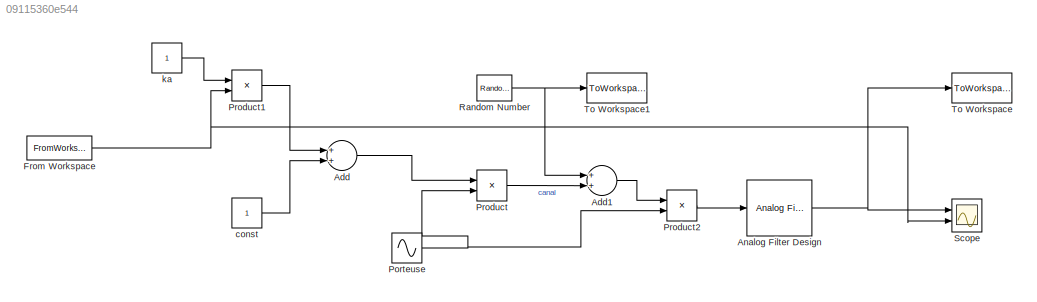
MODEL slx_09115360e544
KIND model
CONFIG AbsTol = auto
CONFIG FixedStep = 1/100000
CONFIG MaxStep = auto
CONFIG MinStep = auto
CONFIG RelTol = 1e-3
CONFIG SampleTimeConstraint = Unconstrained
CONFIG Solver = ode3
CONFIG SolverMode = Auto
CONFIG SolverName = ode3
CONFIG StartTime = 0.0
CONFIG StopTime = 5
BLOCK [Sum] Add
  InputSameDT = off
  OutDataTypeStr = Inherit: Inherit via internal rule
  Ports = [2, 1]
  SaturateOnIntegerOverflow = off
BLOCK [Sum] Add1
  InputSameDT = off
  OutDataTypeStr = Inherit: Inherit via internal rule
  Ports = [2, 1]
  SaturateOnIntegerOverflow = off
BLOCK [Reference] Analog Filter Design  REF=dsparch4/Analog
Filter Design
  Ports = [1, 1]
  SourceBlock = dsparch4/Analog\nFilter Design
  SourceType = Analog Filter Design
BLOCK [FromWorkspace] From Workspace
  SampleTime = 1/100000
  VariableName = signal
  ZeroCross = on
BLOCK [Sin] Porteuse
  Frequency = 60000*2*pi
  Phase = pi/2
  Ports = [0, 1]
  SampleTime = 1/100000
BLOCK [Product] Product
  InputSameDT = off
  OutDataTypeStr = Inherit: Inherit via internal rule
  Ports = [2, 1]
  RndMeth = Floor
  SaturateOnIntegerOverflow = off
BLOCK [Product] Product1
  InputSameDT = off
  OutDataTypeStr = Inherit: Inherit via internal rule
  Ports = [2, 1]
  RndMeth = Floor
  SaturateOnIntegerOverflow = off
BLOCK [Product] Product2
  InputSameDT = off
  OutDataTypeStr = Inherit: Inherit via internal rule
  Ports = [2, 1]
  RndMeth = Floor
  SaturateOnIntegerOverflow = off
BLOCK [RandomNumber] Random Number
  SampleTime = 1/100000
  Variance = 5
BLOCK [Scope] Scope
  NumInputPorts = 2
  Ports = [2]
  ScopeSpecificationString = Simulink.scopes.TimeScopeBlockCfg('CurrentConfiguration', extmgr.ConfigurationSet(extmgr.Configuration('Core','General UI',true),extmgr.Configuration('Core','Source UI',true),extmgr.Configuration('Sources','WiredSimulink',true),extmgr.Configuration('Visuals','Time Domain',true,'SerializedDisplays',{struct('MinYLimReal','-0.27155','MaxYLimReal','0.71503','YLabelReal','','MinYLimMag','0.00000','MaxY...<+2033ch>
BLOCK [ToWorkspace] To Workspace
  FixptAsFi = on
  MaxDataPoints = inf
  Ports = [1]
  SampleTime = 1/100000
  Save2DSignal = 2-D array (concatenate along first dimension)
  VariableName = simout
BLOCK [ToWorkspace] To Workspace1
  FixptAsFi = on
  MaxDataPoints = inf
  Ports = [1]
  SampleTime = 1/100000
  Save2DSignal = 2-D array (concatenate along first dimension)
  VariableName = noise
BLOCK [Constant] const
  SampleTime = -1
BLOCK [Constant] ka
  SampleTime = -1
LINE Add1:1 -> Product2:1
LINE Add:1 -> Product:1
NET Analog Filter Design:1 -> Scope:1, To Workspace:1
NET From Workspace:1 -> Product1:2, Scope:2
NET Porteuse:1 -> Product2:2, Product:2
LINE Product1:1 -> Add:1
LINE Product2:1 -> Analog Filter Design:1
LINE Product:1 -> Add1:2
NET Random Number:1 -> Add1:1, To Workspace1:1
LINE const:1 -> Add:2
LINE ka:1 -> Product1:1
note: NET lines group one-source signal fan-out (src -> all destinations, sorted); 1:1 wires keep LINE
